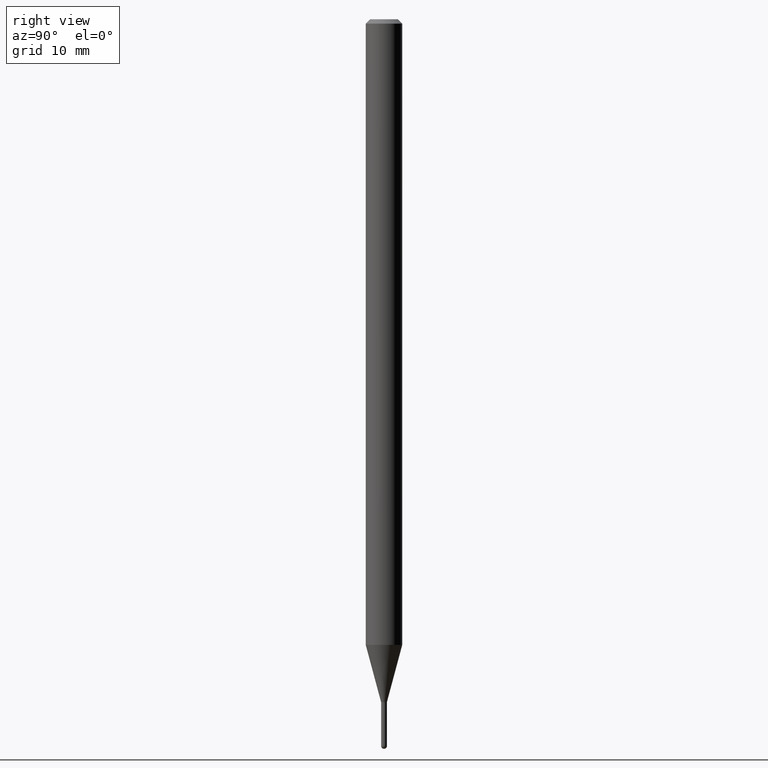
[diagram: clean part render]
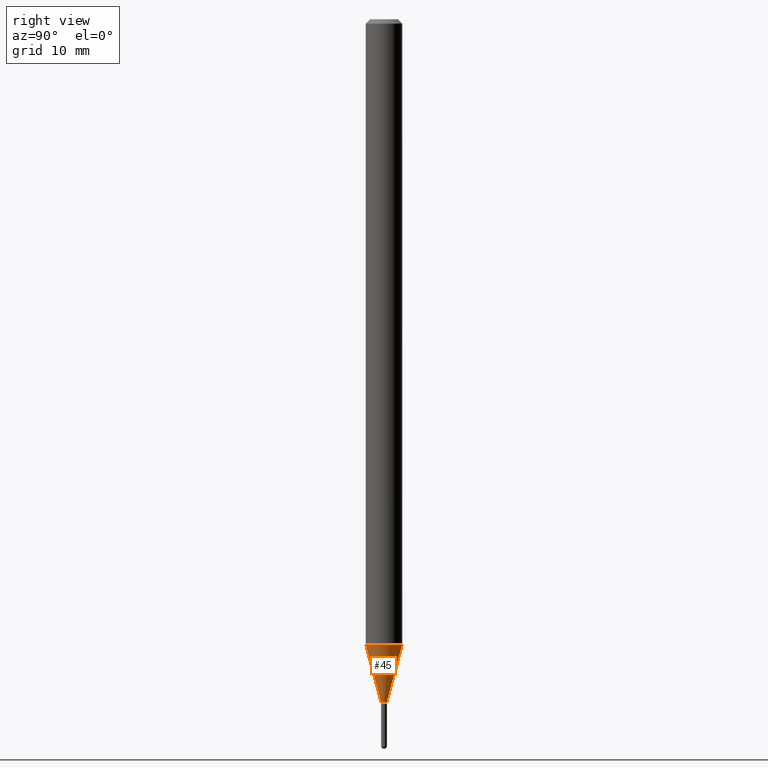
[diagram: same view with one face highlighted and labeled with its STEP entity id]
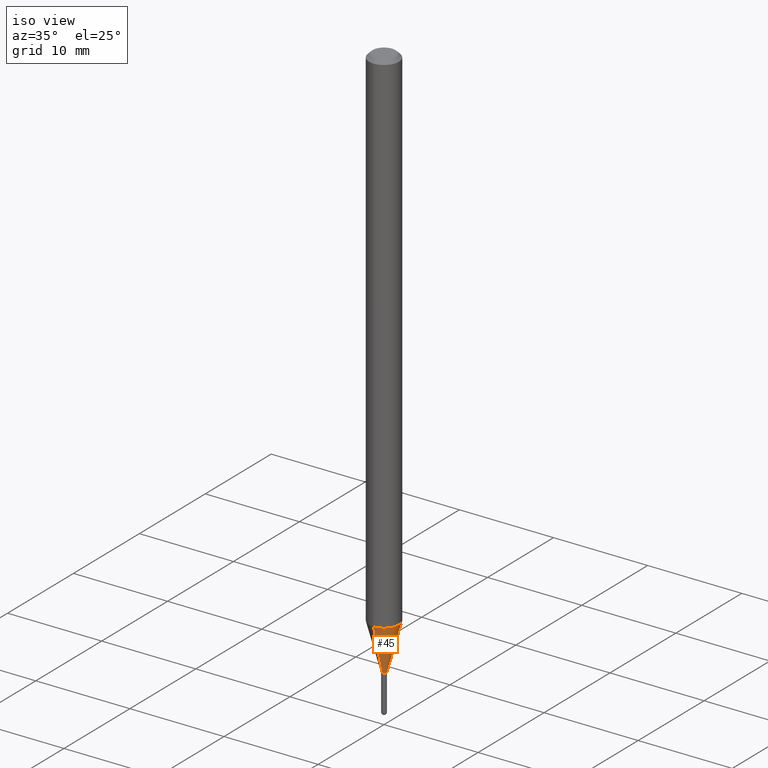
[diagram: same view with one face highlighted and labeled with its STEP entity id]
A machine part, right view. The second image highlights one B-rep face of the part: STEP entity #45.
A second angle (iso view) of the same face is appended — the face is thin or edge-on in the first view.
In plain terms, the highlighted conical surface has half-angle 15 deg.
Its self-contained STEP definition (entity closure, byte-faithful):
#20 = DIRECTION ( 'NONE',  ( -2.445532791204975486E-29, 3.491389708652934978E-15, 1.000000000000000000 ) ) ;
#23 = EDGE_CURVE ( 'NONE', #94, #158, #123, .T. ) ;
#25 = CARTESIAN_POINT ( 'NONE',  ( 4.440892098501148782E-16, 0.06249999999999250599, -2.144067332602639375 ) ) ;
#33 = DIRECTION ( 'NONE',  ( -1.807323732225378654E-15, -0.2588190451025251249, 0.9659258262890670910 ) ) ;
#37 = CIRCLE ( 'NONE', #162, 0.06250000000000000000 ) ;
#38 = EDGE_CURVE ( 'NONE', #94, #148, #120, .T. ) ;
#42 = AXIS2_PLACEMENT_3D ( 'NONE', #249, #176, #431 ) ;
#44 = CARTESIAN_POINT ( 'NONE',  ( -4.364351673553393088E-16, -0.06250000000000749401, -2.144067332602638931 ) ) ;
#45 = ADVANCED_FACE ( 'NONE', ( #202 ), #447, .T. ) ;
#94 = VERTEX_POINT ( 'NONE', #289 ) ;
#120 = LINE ( 'NONE', #390, #231 ) ;
#123 = CIRCLE ( 'NONE', #400, 0.009999999999999649794 ) ;
#124 = ORIENTED_EDGE ( 'NONE', *, *, #38, .F. ) ;
#132 = CARTESIAN_POINT ( 'NONE',  ( 2.575717417130899915E-16, 0.009999999999991479246, -2.340000000000000302 ) ) ;
#148 = VERTEX_POINT ( 'NONE', #44 ) ;
#152 = EDGE_CURVE ( 'NONE', #158, #226, #282, .T. ) ;
#158 = VERTEX_POINT ( 'NONE', #132 ) ;
#162 = AXIS2_PLACEMENT_3D ( 'NONE', #391, #20, #420 ) ;
#176 = DIRECTION ( 'NONE',  ( -2.445532791204975486E-29, 3.491389708652934978E-15, 1.000000000000000000 ) ) ;
#202 = FACE_OUTER_BOUND ( 'NONE', #313, .T. ) ;
#218 = ORIENTED_EDGE ( 'NONE', *, *, #152, .T. ) ;
#220 = VECTOR ( 'NONE', #441, 39.37007874015748143 ) ;
#226 = VERTEX_POINT ( 'NONE', #25 ) ;
#231 = VECTOR ( 'NONE', #33, 39.37007874015748854 ) ;
#242 = CARTESIAN_POINT ( 'NONE',  ( 5.722546731419643445E-29, -8.169851918247868605E-15, -2.340000000000000302 ) ) ;
#249 = CARTESIAN_POINT ( 'NONE',  ( 5.722546731419643445E-29, -8.169851918247868605E-15, -2.340000000000000302 ) ) ;
#282 = LINE ( 'NONE', #292, #220 ) ;
#289 = CARTESIAN_POINT ( 'NONE',  ( -6.982962677680298731E-17, -0.01000000000000782034, -2.340000000000000302 ) ) ;
#292 = CARTESIAN_POINT ( 'NONE',  ( 7.105427357606474729E-17, 0.009999999999991479246, -2.340000000000000302 ) ) ;
#308 = ORIENTED_EDGE ( 'NONE', *, *, #508, .F. ) ;
#313 = EDGE_LOOP ( 'NONE', ( #485, #218, #308, #124 ) ) ;
#358 = DIRECTION ( 'NONE',  ( -6.982962677686265922E-15, -1.000000000000000000, 0.000000000000000000 ) ) ;
#390 = CARTESIAN_POINT ( 'NONE',  ( -6.982962677680298731E-17, -0.01000000000000782034, -2.340000000000000302 ) ) ;
#391 = CARTESIAN_POINT ( 'NONE',  ( 5.243386968431138412E-29, -7.485774619707804452E-15, -2.144067332602638931 ) ) ;
#394 = DIRECTION ( 'NONE',  ( -2.445532791204975486E-29, 3.491389708652934978E-15, 1.000000000000000000 ) ) ;
#400 = AXIS2_PLACEMENT_3D ( 'NONE', #242, #394, #358 ) ;
#420 = DIRECTION ( 'NONE',  ( -6.982962677686265922E-15, -1.000000000000000000, 4.370956789862821150E-15 ) ) ;
#431 = DIRECTION ( 'NONE',  ( -6.982962677686265922E-15, -1.000000000000000000, 0.000000000000000000 ) ) ;
#441 = DIRECTION ( 'NONE',  ( 1.839019923739649619E-15, 0.2588190451025318972, 0.9659258262890653146 ) ) ;
#447 = CONICAL_SURFACE ( 'NONE', #42, 0.009999999999999649794, 0.2617993877991574569 ) ;
#485 = ORIENTED_EDGE ( 'NONE', *, *, #23, .T. ) ;
#508 = EDGE_CURVE ( 'NONE', #148, #226, #37, .T. ) ;